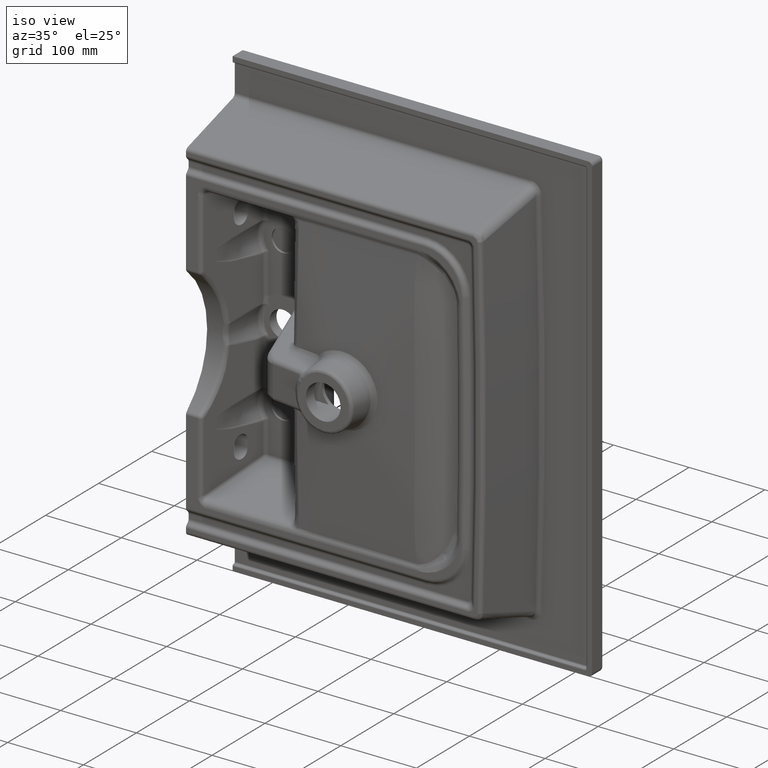
[diagram: clean part render]
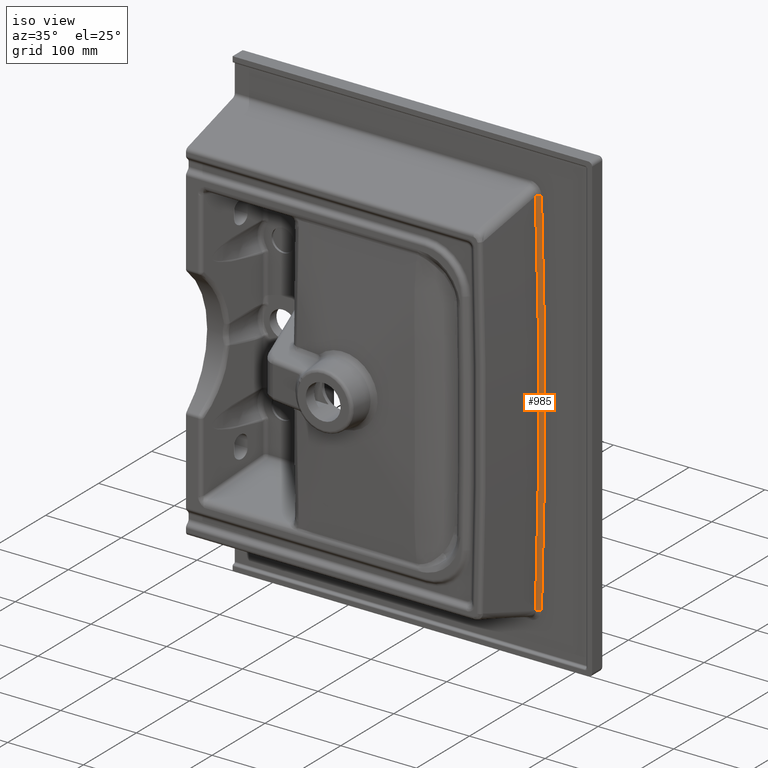
[diagram: same view with one face highlighted and labeled with its STEP entity id]
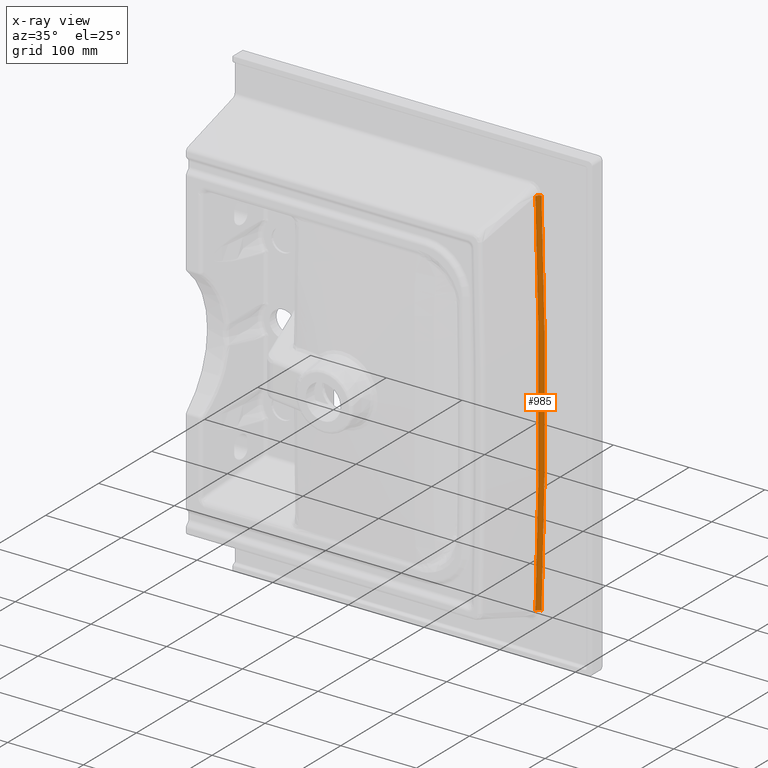
[diagram: x-ray of the same camera — body ghosted, the highlighted face saturated]
A machine part, iso view. The second image highlights one B-rep face of the part: STEP entity #985.
The next image is the same camera in x-ray: the body ghosted, the highlighted face saturated — about 0% of this face is hidden behind the body in this view.
In plain terms, the highlighted toroidal blend (fillet) surface has major radius 6766.14 mm and minor (blend) radius 5 mm.
Its self-contained STEP definition (entity closure, byte-faithful):
#111=TOROIDAL_SURFACE('',#4610,6766.14372951557,5.);
#985=ADVANCED_FACE('',(#1347),#111,.F.);
#1347=FACE_OUTER_BOUND('',#1619,.T.);
#1619=EDGE_LOOP('',(#2738,#2739,#2740,#2741));
#1781=CIRCLE('',#4398,6766.14372951557);
#1832=CIRCLE('',#4483,6761.19238917186);
#1898=CIRCLE('',#4608,5.);
#1899=CIRCLE('',#4609,5.);
#2738=ORIENTED_EDGE('',*,*,#4079,.T.);
#2739=ORIENTED_EDGE('',*,*,#3929,.F.);
#2740=ORIENTED_EDGE('',*,*,#4080,.F.);
#2741=ORIENTED_EDGE('',*,*,#3757,.F.);
#3360=VERTEX_POINT('',#8161);
#3361=VERTEX_POINT('',#8163);
#3494=VERTEX_POINT('',#9719);
#3497=VERTEX_POINT('',#9730);
#3757=EDGE_CURVE('',#3360,#3361,#1781,.T.);
#3929=EDGE_CURVE('',#3497,#3494,#1832,.T.);
#4079=EDGE_CURVE('',#3360,#3494,#1898,.T.);
#4080=EDGE_CURVE('',#3361,#3497,#1899,.T.);
#4398=AXIS2_PLACEMENT_3D('',#8162,#4940,#4941);
#4483=AXIS2_PLACEMENT_3D('',#9731,#5180,#5181);
#4608=AXIS2_PLACEMENT_3D('',#11117,#5466,#5467);
#4609=AXIS2_PLACEMENT_3D('',#11148,#5468,#5469);
#4610=AXIS2_PLACEMENT_3D('',#11149,#5470,#5471);
#4940=DIRECTION('',(0.,1.,0.));
#4941=DIRECTION('',(0.,0.,1.));
#5180=DIRECTION('',(0.,-1.,0.));
#5181=DIRECTION('',(0.,0.,1.));
#5466=DIRECTION('',(-0.036603971773711,0.,0.999329850074733));
#5467=DIRECTION('',(-0.999329850074732,0.,-0.0366039717737132));
#5468=DIRECTION('',(0.036603971773711,0.,0.999329850074734));
#5469=DIRECTION('',(0.999329850074732,0.,-0.0366039717737132));
#5470=DIRECTION('',(0.,1.,0.));
#5471=DIRECTION('',(0.,0.,1.));
#8161=CARTESIAN_POINT('',(167.809398800893,-18.,247.66773409205));
#8162=CARTESIAN_POINT('',(-6593.8,-18.,0.));
#8163=CARTESIAN_POINT('',(167.809398800893,-18.,-247.66773409205));
#9719=CARTESIAN_POINT('',(162.861376597546,-22.3041344951999,247.486495369867));
#9730=CARTESIAN_POINT('',(162.861376597546,-22.3041344951998,-247.486495369867));
#9731=CARTESIAN_POINT('',(-6593.8,-22.3041344951998,0.));
#11117=CARTESIAN_POINT('',(167.809398800893,-23.,247.66773409205));
#11148=CARTESIAN_POINT('',(167.809398800893,-23.,-247.66773409205));
#11149=CARTESIAN_POINT('',(-6593.8,-23.,0.));